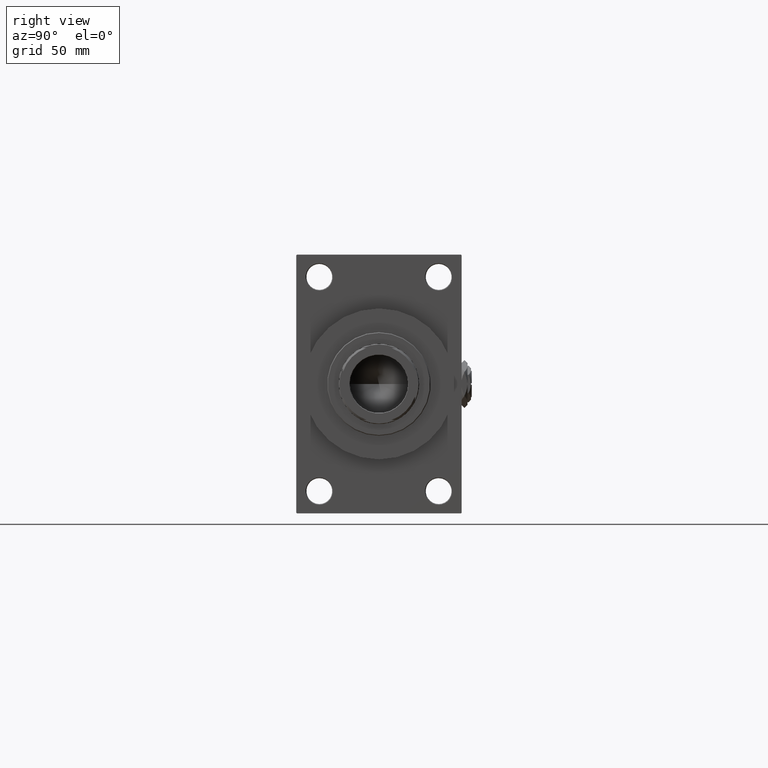
[diagram: clean part render]
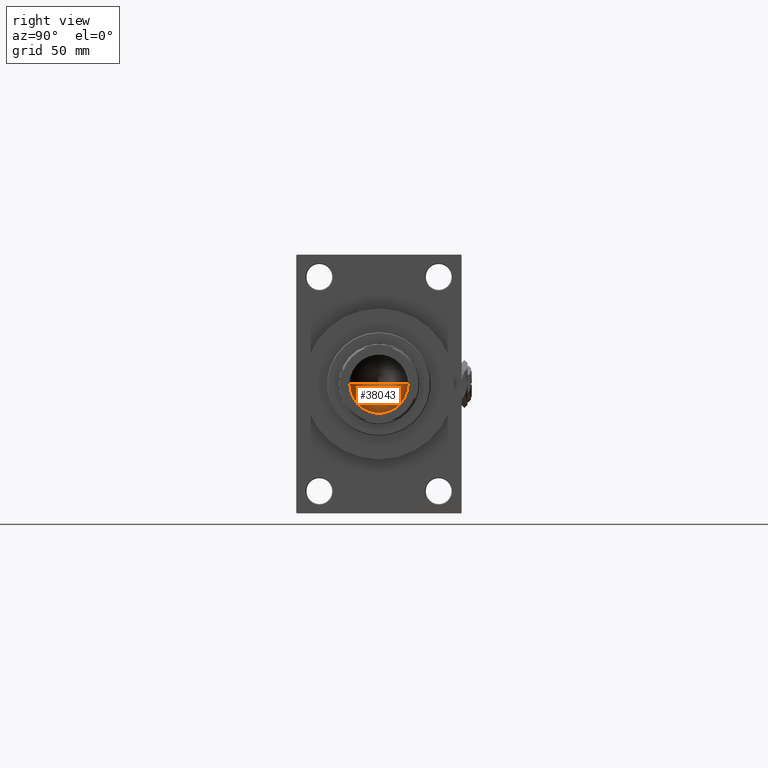
[diagram: same view with one face highlighted and labeled with its STEP entity id]
A machine part, right view. The second image highlights one B-rep face of the part: STEP entity #38043.
In plain terms, the highlighted conical surface has half-angle 59 deg.
Its self-contained STEP definition (entity closure, byte-faithful):
#1709 = EDGE_LOOP ( 'NONE', ( #48959, #7909, #41589 ) ) ;
#3202 = VERTEX_POINT ( 'NONE', #32683 ) ;
#3720 = CARTESIAN_POINT ( 'NONE',  ( 20.24999999999998934, 0.000000000000000000, 335.0000000000000000 ) ) ;
#5804 = DIRECTION ( 'NONE',  ( -0.8571673007021112234, 1.049727191138617340E-16, 0.5150380749100560429 ) ) ;
#6737 = EDGE_CURVE ( 'NONE', #25673, #22501, #33834, .T. ) ;
#7328 = DIRECTION ( 'NONE',  ( 1.000000000000000000, 0.000000000000000000, 0.000000000000000000 ) ) ;
#7597 = LINE ( 'NONE', #15394, #47920 ) ;
#7909 = ORIENTED_EDGE ( 'NONE', *, *, #30859, .T. ) ;
#10719 = EDGE_CURVE ( 'NONE', #3202, #22501, #21159, .T. ) ;
#11352 = CARTESIAN_POINT ( 'NONE',  ( 0.000000000000000000, 0.000000000000000000, 335.0000000000000000 ) ) ;
#12131 = AXIS2_PLACEMENT_3D ( 'NONE', #28148, #12285, #12782 ) ;
#12285 = DIRECTION ( 'NONE',  ( -0.000000000000000000, -0.000000000000000000, 1.000000000000000000 ) ) ;
#12782 = DIRECTION ( 'NONE',  ( 1.000000000000000000, 0.000000000000000000, 0.000000000000000000 ) ) ;
#13018 = CONICAL_SURFACE ( 'NONE', #48394, 20.24999999999998934, 1.029744258676652313 ) ;
#15394 = CARTESIAN_POINT ( 'NONE',  ( 20.24999999999998934, 0.000000000000000000, 335.0000000000000000 ) ) ;
#21159 = LINE ( 'NONE', #40797, #35257 ) ;
#22501 = VERTEX_POINT ( 'NONE', #39726 ) ;
#23183 = FACE_OUTER_BOUND ( 'NONE', #1709, .T. ) ;
#25673 = VERTEX_POINT ( 'NONE', #3720 ) ;
#28148 = CARTESIAN_POINT ( 'NONE',  ( 0.000000000000000000, 0.000000000000000000, 335.0000000000000000 ) ) ;
#30757 = DIRECTION ( 'NONE',  ( 0.8571673007021112234, 0.000000000000000000, 0.5150380749100560429 ) ) ;
#30859 = EDGE_CURVE ( 'NONE', #3202, #25673, #7597, .T. ) ;
#32683 = CARTESIAN_POINT ( 'NONE',  ( -1.584115414415908206E-14, 0.000000000000000000, 322.8325724646919070 ) ) ;
#33834 = CIRCLE ( 'NONE', #12131, 20.24999999999998934 ) ;
#35257 = VECTOR ( 'NONE', #5804, 1000.000000000000000 ) ;
#38043 = ADVANCED_FACE ( 'NONE', ( #23183 ), #13018, .F. ) ;
#39726 = CARTESIAN_POINT ( 'NONE',  ( -20.24999999999998934, 2.479909768273389117E-15, 335.0000000000000000 ) ) ;
#40797 = CARTESIAN_POINT ( 'NONE',  ( -20.24999999999998934, 2.479909768273389117E-15, 335.0000000000000000 ) ) ;
#41574 = DIRECTION ( 'NONE',  ( -0.000000000000000000, -0.000000000000000000, 1.000000000000000000 ) ) ;
#41589 = ORIENTED_EDGE ( 'NONE', *, *, #6737, .T. ) ;
#47920 = VECTOR ( 'NONE', #30757, 1000.000000000000000 ) ;
#48394 = AXIS2_PLACEMENT_3D ( 'NONE', #11352, #41574, #7328 ) ;
#48959 = ORIENTED_EDGE ( 'NONE', *, *, #10719, .F. ) ;